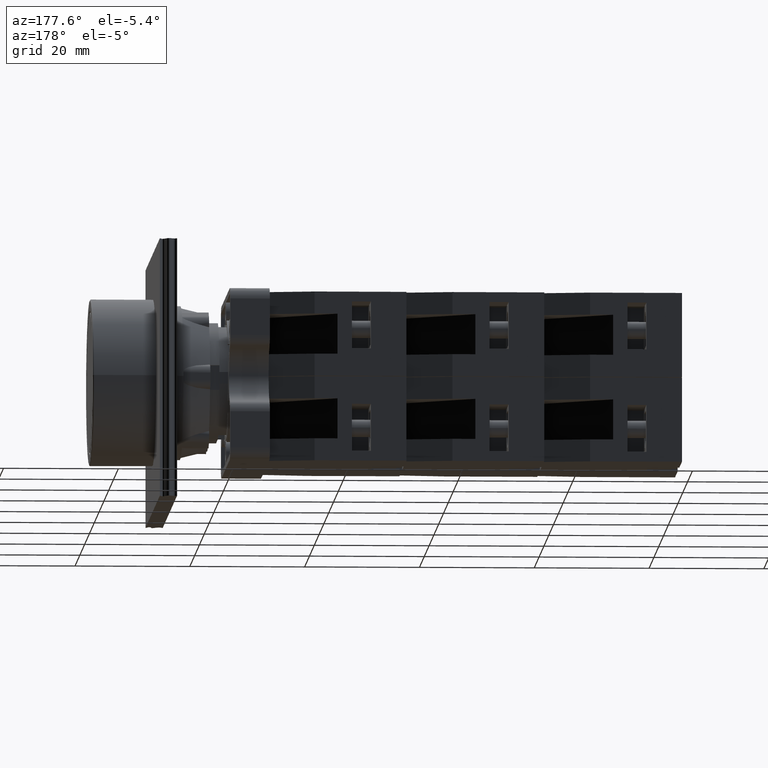
[diagram: clean part render]
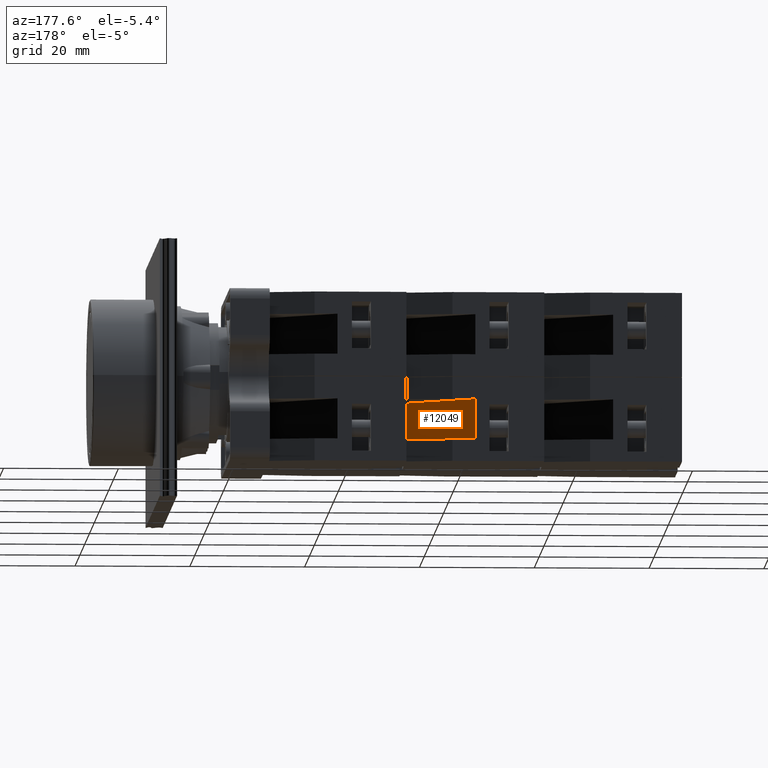
[diagram: same view with one face highlighted and labeled with its STEP entity id]
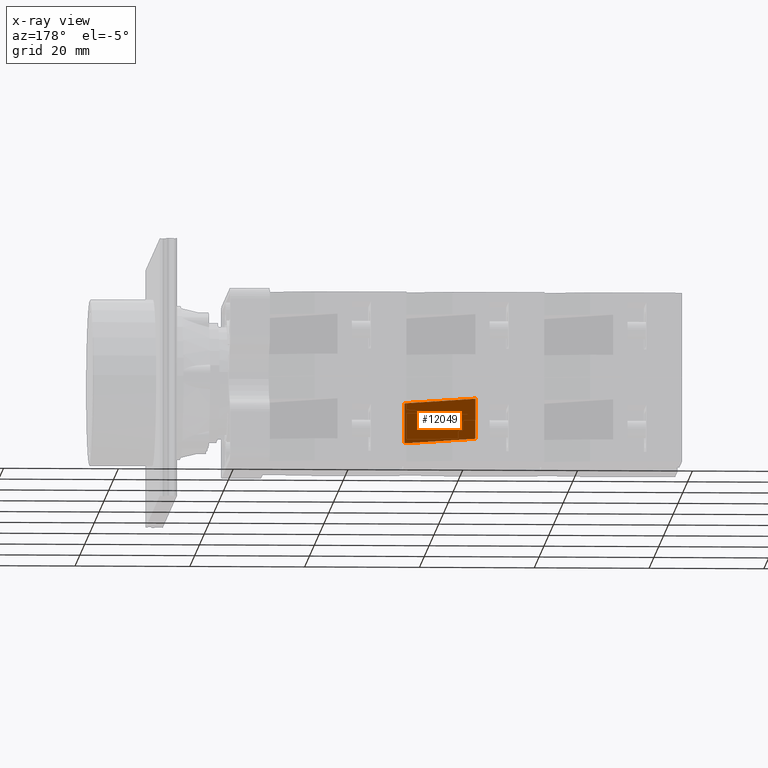
[diagram: x-ray of the same camera — body ghosted, the highlighted face saturated]
A machine part, auxiliary view. The second image highlights one B-rep face of the part: STEP entity #12049.
The next image is the same camera in x-ray: the body ghosted, the highlighted face saturated — about 0% of this face is hidden behind the body in this view.
In plain terms, the highlighted face is a freeform B-spline surface patch.
Its self-contained STEP definition (entity closure, byte-faithful):
#11994=CARTESIAN_POINT('',(-44.936741828918457,11.797073323279610,10.850000000000000));
#11995=VERTEX_POINT('',#11994);
#12002=CARTESIAN_POINT('',(-35.936741828918450,-0.202926676720384,10.850000000000000));
#12003=VERTEX_POINT('',#12002);
#12004=CARTESIAN_POINT('',(-35.936741828918450,-0.202926676720384,10.850000000000000));
#12005=DIRECTION('',(-0.600000000000000,0.800000000000000,0.0));
#12006=VECTOR('',#12005,15.0);
#12007=LINE('',#12004,#12006);
#12008=EDGE_CURVE('',#12003,#11995,#12007,.T.);
#12019=CARTESIAN_POINT('',(-44.936741828918464,11.797073323279616,3.850000000000000));
#12020=CARTESIAN_POINT('',(-44.936741828918464,11.797073323279616,10.850000000000001));
#12021=CARTESIAN_POINT('',(-35.936741828918443,-0.202926676720384,3.850000000000000));
#12022=CARTESIAN_POINT('',(-35.936741828918450,-0.202926676720384,10.850000000000001));
#12023=B_SPLINE_SURFACE_WITH_KNOTS('',1,1,((#12019,#12021),(#12020,#12022)),.UNSPECIFIED.,.F.,.F.,.U.,(2,2),(2,2),(0.0,7.000000000000002),(0.0,15.000000000000012),.UNSPECIFIED.);
#12024=CARTESIAN_POINT('',(-44.936741828918457,11.797073323279610,3.850000000000001));
#12025=VERTEX_POINT('',#12024);
#12026=CARTESIAN_POINT('',(-35.936741828918450,-0.202926676720384,3.850000000000001));
#12027=VERTEX_POINT('',#12026);
#12028=CARTESIAN_POINT('',(-44.936741828918457,11.797073323279610,3.850000000000001));
#12029=DIRECTION('',(0.600000000000000,-0.800000000000000,0.0));
#12030=VECTOR('',#12029,15.0);
#12031=LINE('',#12028,#12030);
#12032=EDGE_CURVE('',#12025,#12027,#12031,.T.);
#12033=ORIENTED_EDGE('',*,*,#12032,.T.);
#12034=CARTESIAN_POINT('',(-35.936741828918450,-0.202926676720384,10.850000000000000));
#12035=DIRECTION('',(0.0,0.0,-1.0));
#12036=VECTOR('',#12035,6.999999999999999);
#12037=LINE('',#12034,#12036);
#12038=EDGE_CURVE('',#12003,#12027,#12037,.T.);
#12039=ORIENTED_EDGE('',*,*,#12038,.F.);
#12040=ORIENTED_EDGE('',*,*,#12008,.T.);
#12041=CARTESIAN_POINT('',(-44.936741828918457,11.797073323279610,3.850000000000001));
#12042=DIRECTION('',(0.0,0.0,1.0));
#12043=VECTOR('',#12042,6.999999999999999);
#12044=LINE('',#12041,#12043);
#12045=EDGE_CURVE('',#12025,#11995,#12044,.T.);
#12046=ORIENTED_EDGE('',*,*,#12045,.F.);
#12047=EDGE_LOOP('',(#12033,#12039,#12040,#12046));
#12048=FACE_OUTER_BOUND('',#12047,.T.);
#12049=ADVANCED_FACE('',(#12048),#12023,.F.);